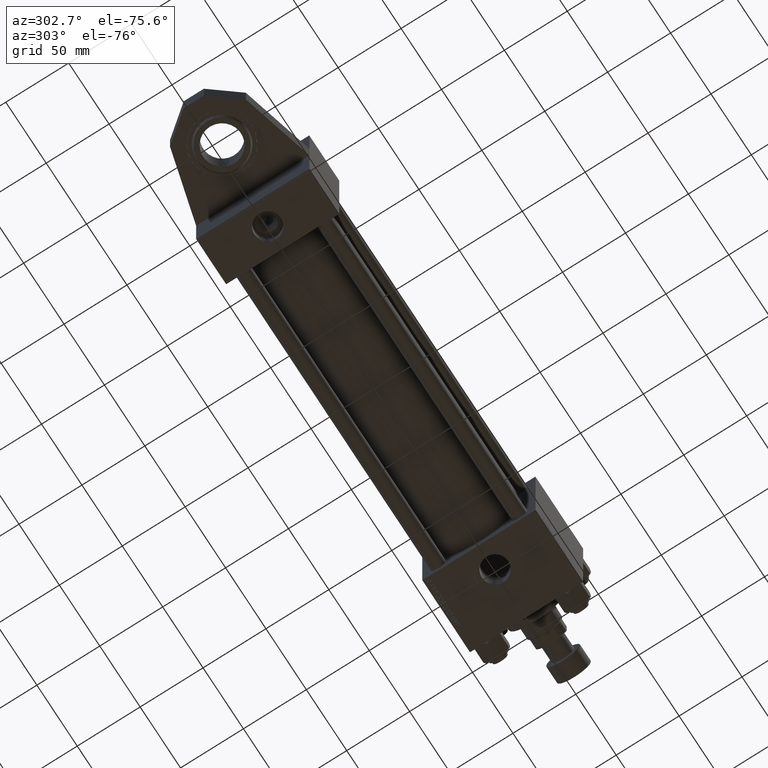
[diagram: clean part render]
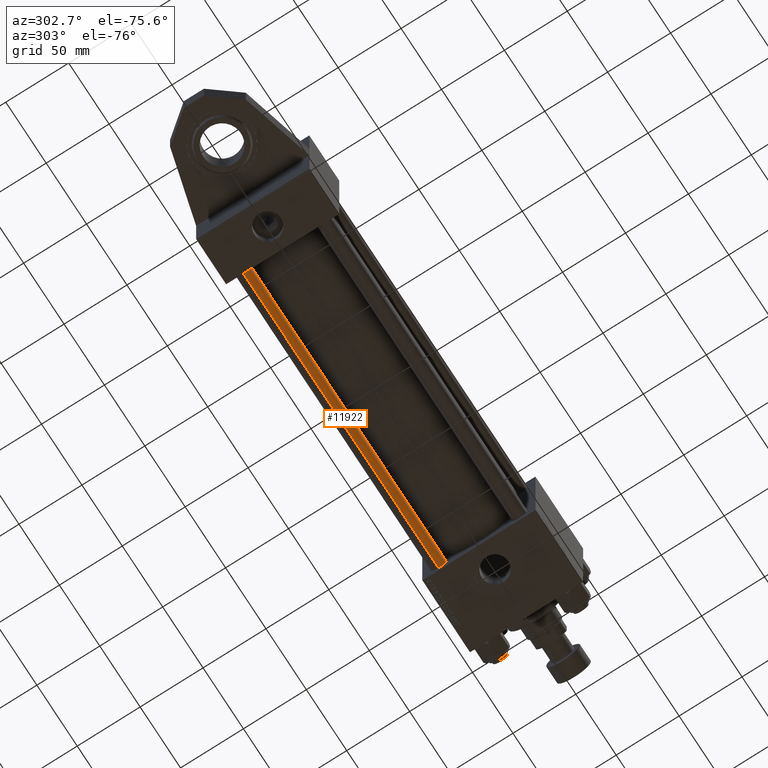
[diagram: same view with one face highlighted and labeled with its STEP entity id]
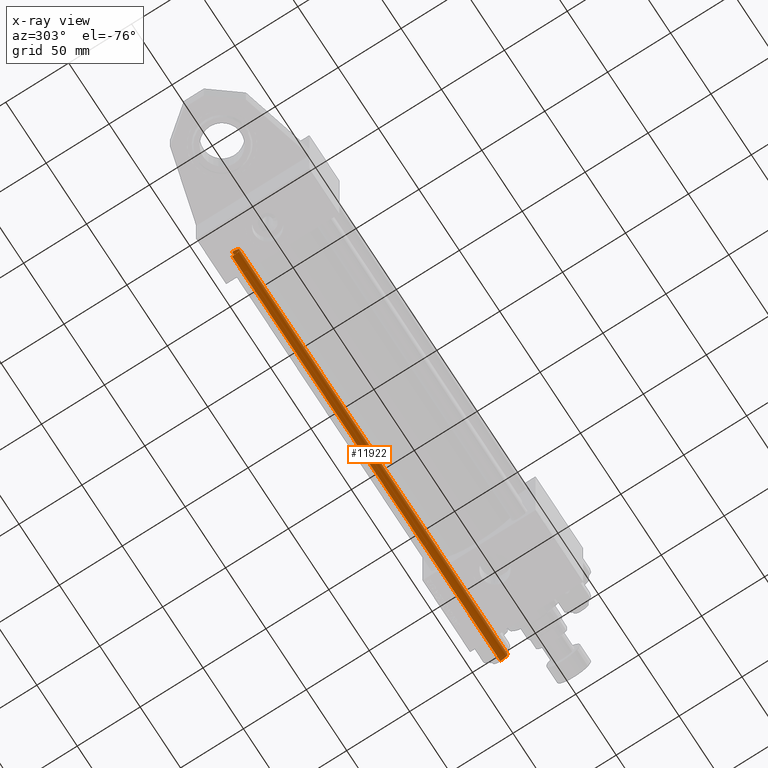
[diagram: x-ray of the same camera — body ghosted, the highlighted face saturated]
A machine part, auxiliary view. The second image highlights one B-rep face of the part: STEP entity #11922.
The next image is the same camera in x-ray: the body ghosted, the highlighted face saturated — about 0% of this face is hidden behind the body in this view.
In plain terms, the highlighted cylindrical surface (edge-blend (fillet) strip) has radius 6 mm, axis along (-1, -0, 0).
Its self-contained STEP definition (entity closure, byte-faithful):
#1735 = CIRCLE ( 'NONE', #31493, 6.000000000000000888 ) ;
#2196 = CARTESIAN_POINT ( 'NONE',  ( 6.000000000000000888, 7.347880794884120722E-16, 0.5000000000000004441 ) ) ;
#2479 = VERTEX_POINT ( 'NONE', #2196 ) ;
#7102 = EDGE_LOOP ( 'NONE', ( #48177, #34430, #51551, #50310 ) ) ;
#9551 = CARTESIAN_POINT ( 'NONE',  ( -6.000000000000000888, 0.000000000000000000, 332.5000000000001137 ) ) ;
#11797 = EDGE_CURVE ( 'NONE', #36660, #2479, #1735, .T. ) ;
#11922 = ADVANCED_FACE ( 'NONE', ( #51731 ), #26190, .T. ) ;
#17466 = LINE ( 'NONE', #37696, #31351 ) ;
#18195 = VERTEX_POINT ( 'NONE', #34607 ) ;
#19560 = CIRCLE ( 'NONE', #43366, 6.000000000000000888 ) ;
#22198 = CARTESIAN_POINT ( 'NONE',  ( 0.000000000000000000, 0.000000000000000000, 0.5000000000000004441 ) ) ;
#25026 = DIRECTION ( 'NONE',  ( 1.000000000000000000, 0.000000000000000000, 0.000000000000000000 ) ) ;
#26190 = CYLINDRICAL_SURFACE ( 'NONE', #27291, 6.000000000000000888 ) ;
#27291 = AXIS2_PLACEMENT_3D ( 'NONE', #28247, #31734, #47982 ) ;
#27781 = VERTEX_POINT ( 'NONE', #9551 ) ;
#28247 = CARTESIAN_POINT ( 'NONE',  ( 0.000000000000000000, 0.000000000000000000, 333.0000000000000000 ) ) ;
#30084 = CARTESIAN_POINT ( 'NONE',  ( 0.000000000000000000, 0.000000000000000000, 332.5000000000001137 ) ) ;
#31351 = VECTOR ( 'NONE', #42235, 1000.000000000000000 ) ;
#31493 = AXIS2_PLACEMENT_3D ( 'NONE', #22198, #43202, #46691 ) ;
#31734 = DIRECTION ( 'NONE',  ( -0.000000000000000000, -0.000000000000000000, -1.000000000000000000 ) ) ;
#34060 = DIRECTION ( 'NONE',  ( 0.000000000000000000, 0.000000000000000000, -1.000000000000000000 ) ) ;
#34430 = ORIENTED_EDGE ( 'NONE', *, *, #37024, .T. ) ;
#34520 = EDGE_CURVE ( 'NONE', #27781, #36660, #17466, .T. ) ;
#34607 = CARTESIAN_POINT ( 'NONE',  ( 6.000000000000000888, 7.347880794884120722E-16, 332.5000000000001137 ) ) ;
#36660 = VERTEX_POINT ( 'NONE', #39988 ) ;
#37024 = EDGE_CURVE ( 'NONE', #18195, #27781, #19560, .T. ) ;
#37696 = CARTESIAN_POINT ( 'NONE',  ( -6.000000000000000888, 0.000000000000000000, 333.0000000000000000 ) ) ;
#38415 = VECTOR ( 'NONE', #46810, 1000.000000000000000 ) ;
#39988 = CARTESIAN_POINT ( 'NONE',  ( -6.000000000000000888, 0.000000000000000000, 0.5000000000000004441 ) ) ;
#42235 = DIRECTION ( 'NONE',  ( -0.000000000000000000, -0.000000000000000000, -1.000000000000000000 ) ) ;
#43202 = DIRECTION ( 'NONE',  ( -0.000000000000000000, -0.000000000000000000, 1.000000000000000000 ) ) ;
#43366 = AXIS2_PLACEMENT_3D ( 'NONE', #30084, #34060, #25026 ) ;
#44677 = EDGE_CURVE ( 'NONE', #18195, #2479, #50810, .T. ) ;
#46691 = DIRECTION ( 'NONE',  ( 1.000000000000000000, 0.000000000000000000, 0.000000000000000000 ) ) ;
#46810 = DIRECTION ( 'NONE',  ( -0.000000000000000000, -0.000000000000000000, -1.000000000000000000 ) ) ;
#47982 = DIRECTION ( 'NONE',  ( -1.000000000000000000, 0.000000000000000000, 0.000000000000000000 ) ) ;
#48177 = ORIENTED_EDGE ( 'NONE', *, *, #44677, .F. ) ;
#49738 = CARTESIAN_POINT ( 'NONE',  ( 6.000000000000000888, 7.347880794884120722E-16, 333.0000000000000000 ) ) ;
#50310 = ORIENTED_EDGE ( 'NONE', *, *, #11797, .T. ) ;
#50810 = LINE ( 'NONE', #49738, #38415 ) ;
#51551 = ORIENTED_EDGE ( 'NONE', *, *, #34520, .T. ) ;
#51731 = FACE_OUTER_BOUND ( 'NONE', #7102, .T. ) ;